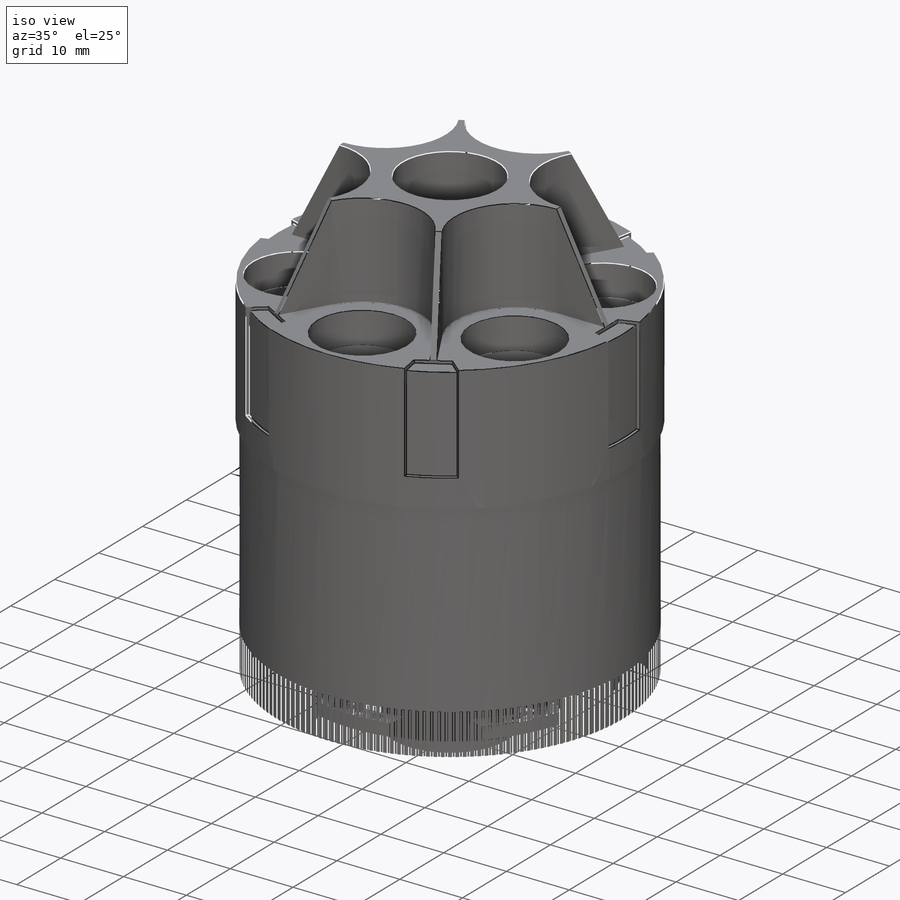
[diagram: iso view]
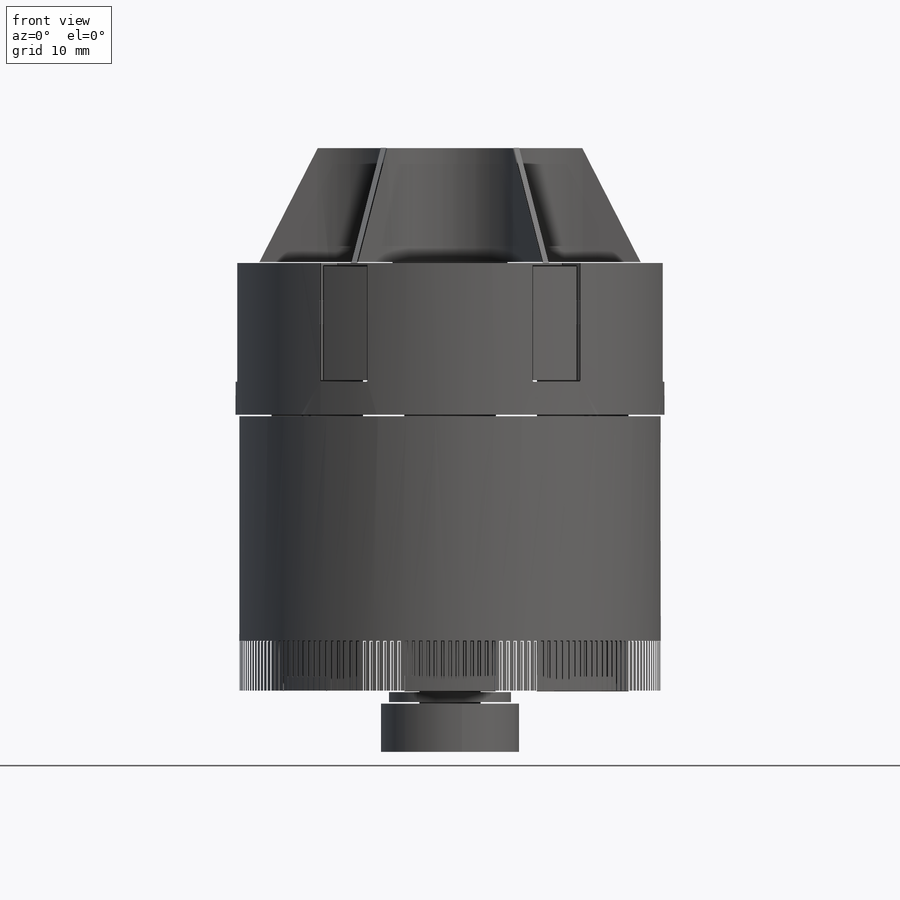
[diagram: front view]
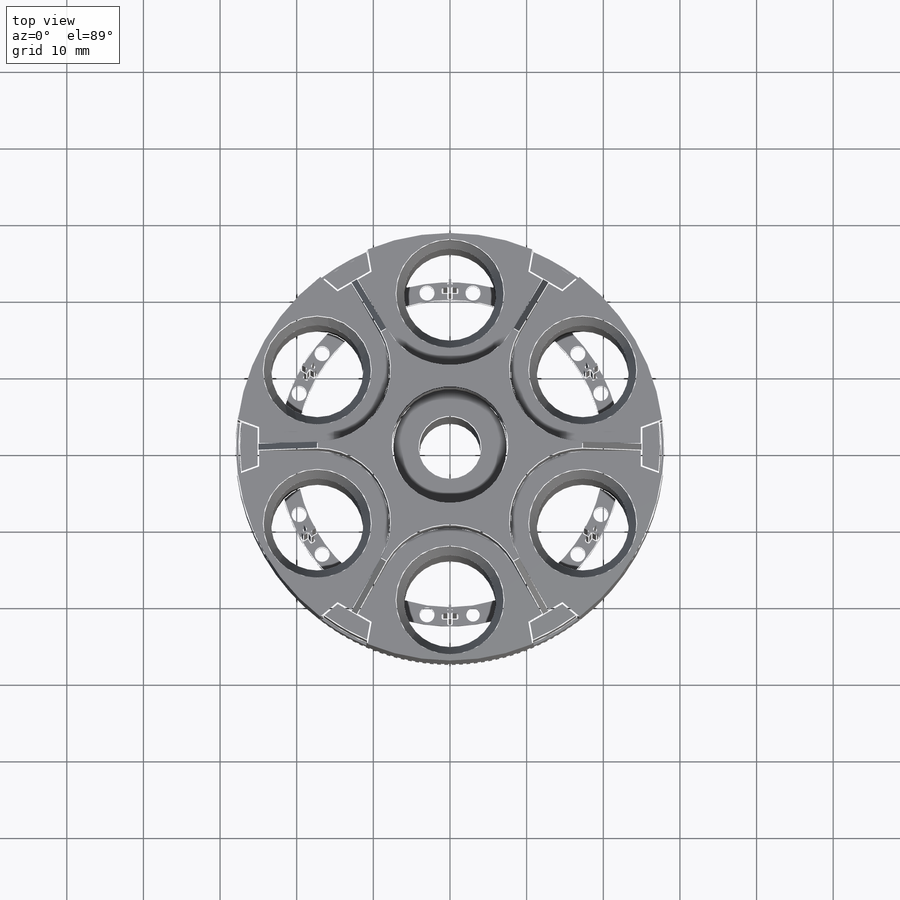
[diagram: top view]
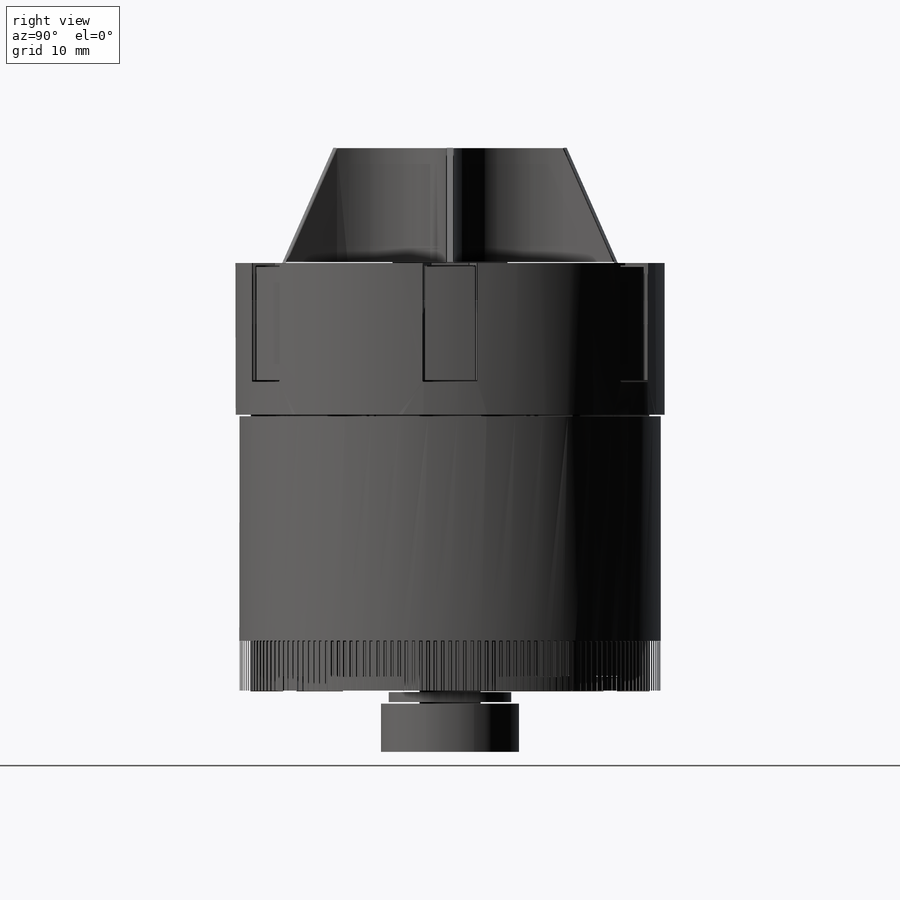
[diagram: right view]
SOLIDWORKS PART (.sldprt)
format: sldprt  version: not decoded by parser v0  size: 9,191,424 bytes
history: native  units: mm
features: sketch x20, fillet x14, cut_extrude x13, pattern_circular x7, extrude x6, material x1, chamfer x1, plane x1 (+11 scaffold rows collapsed)
feature tree (74):
  scaffold x11  (default folders/planes/origin — collapsed)
  material  "Material <not specified>"
  sketch  "Sketch1"  dims[D1=56.0mm]
  extrude  "Boss-Extrude1"  Depth=56mm
  sketch  "Sketch2"  dims[c1.D1=12.0mm c1.D2=5.25mm c1.D3=5.25mm c2.D2=0.0mm c2.D3=20.0mm]
  cut_extrude  "Cut-Extrude1"  Depth=56mm
  pattern_circular  "CirPattern1"  Count=6 Angle=360deg
  sketch  "Sketch3"  dims[c1.D7=~22.762997mm c1.D12=~22.921835mm c2.D7=~7.613043mm c3.D7=~179.081567deg c4.D7=~31.313187mm c5.D7=60.0deg c5.D8=~42.655938mm c6.D8=60.0deg c6.D9=60.0deg c6.D10=~35.81543mm c7.D10=60.0deg c7.D11=25.0mm c7.D12=25.0mm c7.D13=25.0mm c7.D14=25.0mm c7.D15=25.0mm c7.D16=25.0mm c7.D1=3.5mm c7.D2=3.5mm c7.D3=3.5mm c7.D4=3.5mm c7.D5=3.5mm c7.D6=3.5mm]
  extrude  "Boss-Extrude2"  Depth=15mm
  sketch  "Sketch4"  dims[D1=~69.007107mm]
  cut_extrude  "Cut-Extrude2"  Depth=2mm
  pattern_circular  "CirPattern2"  Count=6 Angle=360deg
  sketch  "Sketch5"  dims[D1=14.0mm D2=14.0mm D3=14.0mm D4=14.0mm D5=14.0mm D6=14.0mm]
  cut_extrude  "Cut-Extrude3"  Depth=5mm
  chamfer  "Chamfer1"  Distance=3mm
  sketch  "Sketch6"  dims[D1=45.0mm D2=40.0mm D3=0.0mm D4=0.0mm D5=0.0mm D6=0.0mm D7=0.0mm D8=0.0mm]
  extrude  "Boss-Extrude3"  Depth=2mm
  sketch  "Sketch7"  dims[c1.D1=1.75mm c1.D2=1.75mm c1.D3=1.75mm c1.D4=~1.586416mm c2.D3=3.0mm c2.D4=3.0mm c2.D5=21.0mm c2.D6=0.0mm]
  cut_extrude  "Cut-Extrude4"  Depth=2mm
  pattern_circular  "CirPattern3"  Count=6 Angle=360deg
  sketch  "Sketch8"  dims[D1=2.0mm D2=0.0mm D3=21.25mm]
  extrude  "Boss-Extrude4"  Depth=40mm
  sketch  "Sketch9"  dims[D1=0.5mm D2=0.5mm D3=0.5mm D4=0.5mm D5=0.25mm D6=0.25mm D7=0.25mm]
  cut_extrude  "Cut-Extrude5"  Depth=40mm
  pattern_circular  "CirPattern5"  Count=6 Angle=360deg
  sketch  "Sketch10"  dims[D1=15.0mm]
  cut_extrude  "Cut-Extrude6"  Depth=20mm
  sketch  "Sketch11"  dims[c1.D1=3.015mm c2.D1=~179.814163deg c3.D1=0.0mm c3.D2=5.0mm c3.D3=2.0mm c3.D4=~4.330127mm c4.D4=110.0deg c4.D5=~2.875854mm c5.D5=110.0deg]
  cut_extrude  "Cut-Extrude7"  Depth=0.5mm
  pattern_circular  "CirPattern6"  Count=6 Angle=360deg
  sketch  "Sketch12"  dims[D1=0.5mm D2=~3.273221mm]
  cut_extrude  "Cut-Extrude8"  Depth=15mm
  pattern_circular  "CirPattern7"  Count=6 Angle=360deg
  sketch  "Sketch13"  dims[D1=0.5mm]
  cut_extrude  "Cut-Extrude9"  Depth=36mm
  sketch  "Sketch14"  dims[c1.D1=~2.383453mm c1.D2=~0.487611mm c2.D1=0.1mm c2.D2=0.25mm c2.D3=0.125mm]
  cut_extrude  "Cut-Extrude10"  Depth=6.5mm
  pattern_circular  "CirPattern8"  Count=180 Angle=360deg
  sketch  "Sketch15"  dims[D1=18.0mm D2=16.0mm]
  extrude  "Boss-Extrude5"  Depth=8mm
  sketch  "Sketch16"  dims[D1=18.0mm D2=16.0mm]
  cut_extrude  "Cut-Extrude11"  Depth=1.5mm
  sketch  "Sketch17"  dims[D1=16.0mm]
  cut_extrude  "Cut-Extrude12"  Depth=6mm
  sketch  "Sketch18"  dims[D1=8.0mm]
  cut_extrude  "Cut-Extrude13"  Depth=142mm
  fillet  "Fillet1"  Radius=0.1mm
  fillet  "Fillet2"  Radius=0.1mm
  fillet  "Fillet3"  Radius=0.1mm
  fillet  "Fillet4"  Radius=0.1mm
  fillet  "Fillet5"  Radius=0.1mm
  fillet  "Fillet6"  Radius=0.1mm
  fillet  "Fillet7"  Radius=0.1mm
  fillet  "Fillet8"  Radius=0.1mm
  fillet  "Fillet9"  Radius=0.1mm
  fillet  "Fillet10"  Radius=0.1mm
  fillet  "Fillet11"  Radius=0.1mm
  sketch  "Sketch19"  dims[D1=10.0mm D2=~4.558633mm]
  extrude  "Boss-Extrude6"  Depth=10mm
  fillet  "Fillet12"  Radius=0.1mm
  plane  "Plane1"
  sketch  "Sketch20"  dims[c1.D1=~5.097119mm c2.D1=90.0deg c3.D1=~5.097119mm c4.D1=90.0deg c5.D1=20.0mm]
  fillet  "Fillet13"  Radius=0.1mm
  fillet  "Fillet14"  Radius=0.1mm
decode coverage: 61 of 61 modeling features carry decoded parameters
note: ~ marks probable driven/reference dimensions
note: suppression state not decoded; provenance and decode notes live in map.json
